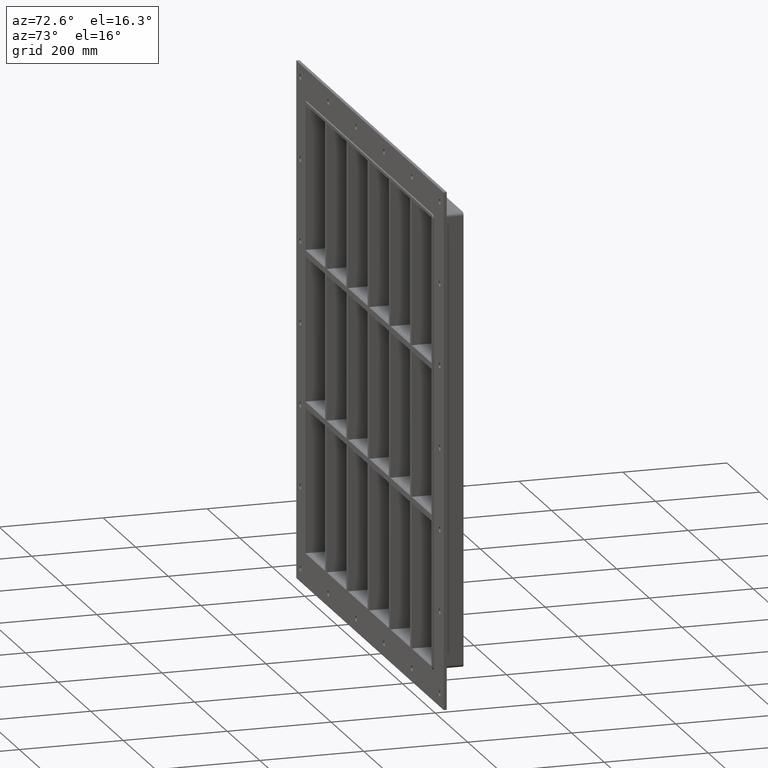
[diagram: clean part render]
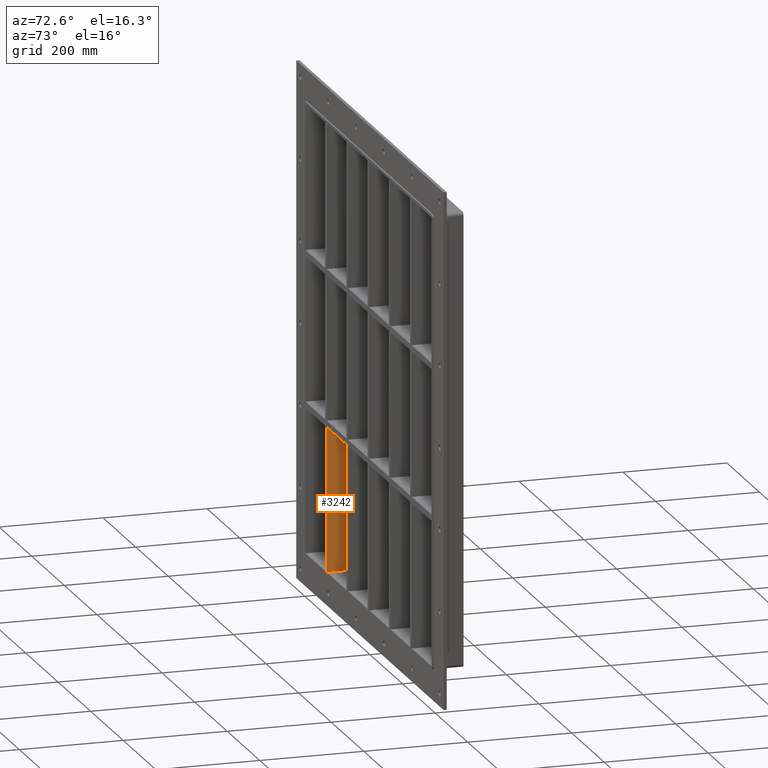
[diagram: same view with one face highlighted and labeled with its STEP entity id]
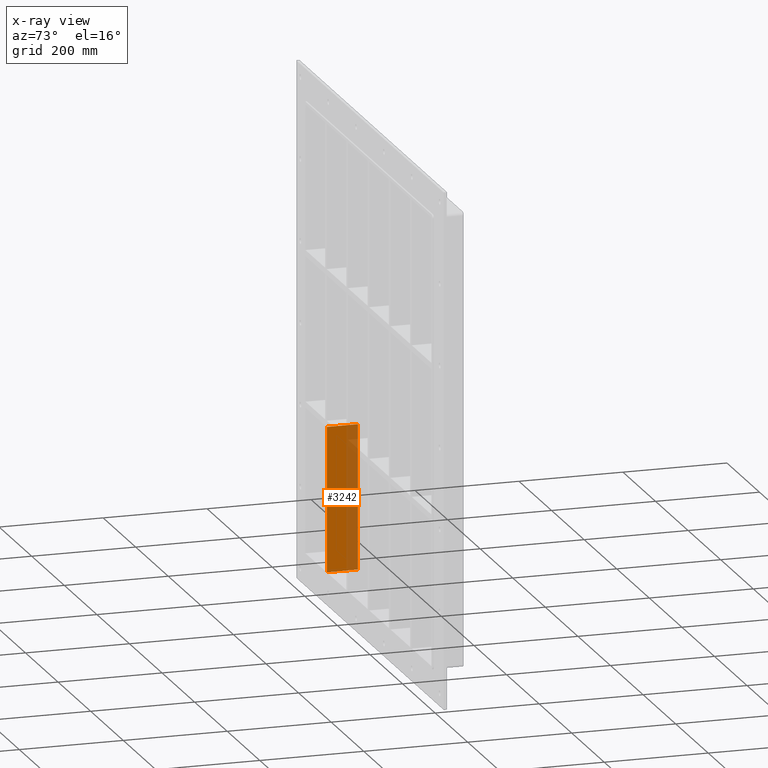
[diagram: x-ray of the same camera — body ghosted, the highlighted face saturated]
A machine part, auxiliary view. The second image highlights one B-rep face of the part: STEP entity #3242.
The next image is the same camera in x-ray: the body ghosted, the highlighted face saturated — about 37% of this face is hidden behind the body in this view.
In plain terms, the highlighted planar face has unit normal (1, 0, 0).
Its self-contained STEP definition (entity closure, byte-faithful):
#1908=CARTESIAN_POINT('',(-256.00000000000364,57.0,-151.00000000001043));
#1909=VERTEX_POINT('',#1908);
#1916=CARTESIAN_POINT('',(-256.00000000000364,57.0,-428.99999999998664));
#1917=VERTEX_POINT('',#1916);
#1918=CARTESIAN_POINT('',(-256.00000000000364,57.0,-151.00000000001035));
#1919=DIRECTION('',(0.0,0.0,-1.0));
#1920=VECTOR('',#1919,277.99999999997635);
#1921=LINE('',#1918,#1920);
#1922=EDGE_CURVE('',#1909,#1917,#1921,.T.);
#2527=CARTESIAN_POINT('',(-256.00000000000364,-3.0,-428.99999999998664));
#2528=VERTEX_POINT('',#2527);
#2529=CARTESIAN_POINT('',(-256.00000000000364,57.000000000000007,-429.00000000000011));
#2530=DIRECTION('',(0.0,-1.0,0.0));
#2531=VECTOR('',#2530,60.000000000000007);
#2532=LINE('',#2529,#2531);
#2533=EDGE_CURVE('',#1917,#2528,#2532,.T.);
#2874=CARTESIAN_POINT('',(-256.00000000000364,-3.0,-151.00000000001043));
#2875=VERTEX_POINT('',#2874);
#2876=CARTESIAN_POINT('',(-256.00000000000364,-3.0,-151.00000000001035));
#2877=DIRECTION('',(0.0,0.0,-1.0));
#2878=VECTOR('',#2877,277.99999999997635);
#2879=LINE('',#2876,#2878);
#2880=EDGE_CURVE('',#2875,#2528,#2879,.T.);
#2968=CARTESIAN_POINT('',(-256.00000000000364,57.0,-151.0000000000104));
#2969=DIRECTION('',(0.0,-1.0,0.0));
#2970=VECTOR('',#2969,60.0);
#2971=LINE('',#2968,#2970);
#2972=EDGE_CURVE('',#1909,#2875,#2971,.T.);
#3231=CARTESIAN_POINT('',(-256.00000000000364,-3.0,429.00000000000011));
#3232=DIRECTION('',(1.0,0.0,0.0));
#3233=DIRECTION('',(0.0,0.0,-1.0));
#3234=AXIS2_PLACEMENT_3D('',#3231,#3232,#3233);
#3235=PLANE('',#3234);
#3236=ORIENTED_EDGE('',*,*,#2972,.T.);
#3237=ORIENTED_EDGE('',*,*,#2880,.T.);
#3238=ORIENTED_EDGE('',*,*,#2533,.F.);
#3239=ORIENTED_EDGE('',*,*,#1922,.F.);
#3240=EDGE_LOOP('',(#3236,#3237,#3238,#3239));
#3241=FACE_OUTER_BOUND('',#3240,.T.);
#3242=ADVANCED_FACE('',(#3241),#3235,.T.);